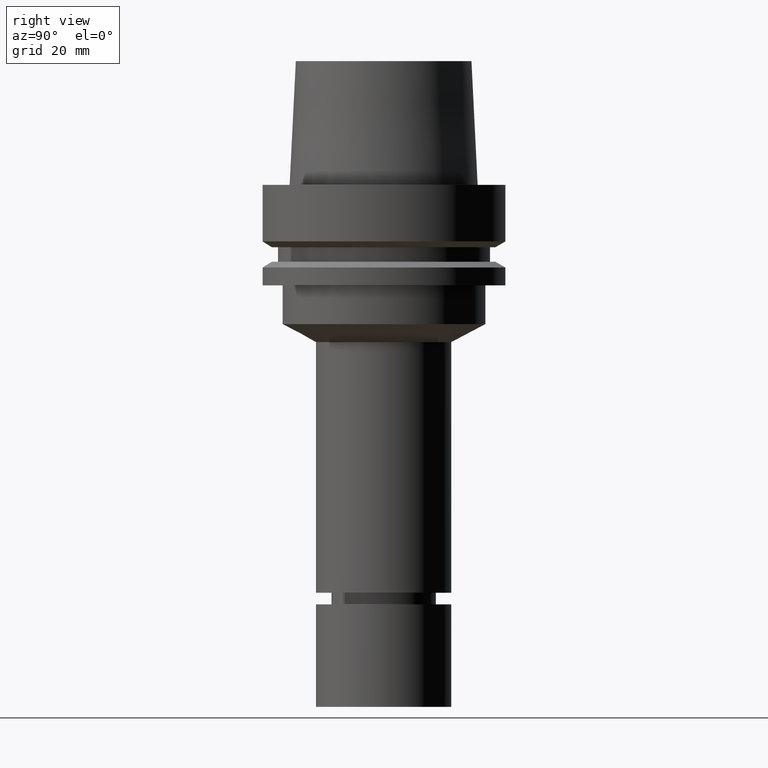
[diagram: clean part render]
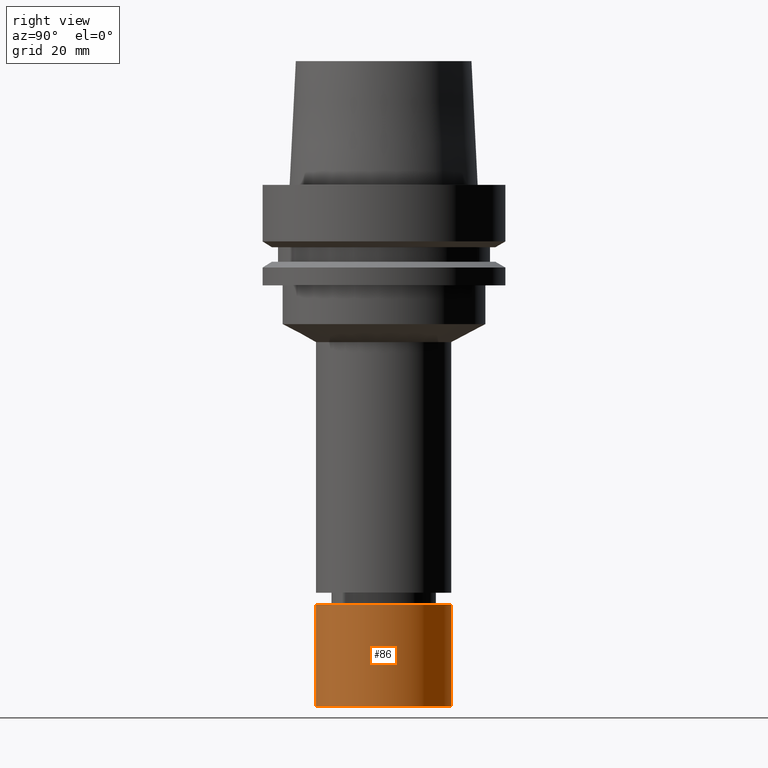
[diagram: same view with one face highlighted and labeled with its STEP entity id]
A machine part, right view. The second image highlights one B-rep face of the part: STEP entity #86.
In plain terms, the highlighted cylindrical surface (bore or boss wall) has radius 17.5 mm, axis along (0, 0, -1).
Its self-contained STEP definition (entity closure, byte-faithful):
#86=ADVANCED_FACE('Unnamed[1]',(#226,#227),#228,.T.);
#88=EDGE_CURVE('Unnamed[1]',#230,#230,#231,.T.);
#190=EDGE_CURVE('Unnamed[1]',#386,#386,#387,.T.);
#226=FACE_BOUND('',#420,.T.);
#227=FACE_BOUND('',#421,.T.);
#228=CYLINDRICAL_SURFACE('',#422,17.5);
#230=VERTEX_POINT('',#425);
#231=CIRCLE('',#426,17.5);
#386=VERTEX_POINT('',#619);
#387=CIRCLE('',#620,17.5);
#420=EDGE_LOOP('',(#643));
#421=EDGE_LOOP('',(#644));
#422=AXIS2_PLACEMENT_3D('',#645,#646,#647);
#425=CARTESIAN_POINT('',(6.64370981970575E-015,17.5,-108.500015258789));
#426=AXIS2_PLACEMENT_3D('',#648,#649,#650);
#619=CARTESIAN_POINT('',(8.26636589424462E-015,17.5,-135.0));
#620=AXIS2_PLACEMENT_3D('',#820,#821,#822);
#643=ORIENTED_EDGE('',*,*,#190,.F.);
#644=ORIENTED_EDGE('',*,*,#88,.T.);
#645=CARTESIAN_POINT('',(7.45503785697519E-015,1.49100757139504E-014,-121.750007629394));
#646=DIRECTION('',(6.12323399573677E-017,1.22464679914735E-016,-1.0));
#647=DIRECTION('',(-1.23259516440783E-032,1.0,1.22464679914735E-016));
#648=CARTESIAN_POINT('',(6.64370981970575E-015,1.32874196394115E-014,-108.500015258789));
#649=DIRECTION('',(6.12323399573677E-017,1.22464679914735E-016,-1.0));
#650=DIRECTION('',(-1.23259516440783E-032,1.0,1.22464679914735E-016));
#820=CARTESIAN_POINT('',(8.26636589424462E-015,1.65327317884892E-014,-135.0));
#821=DIRECTION('',(6.12323399573677E-017,1.22464679914735E-016,-1.0));
#822=DIRECTION('',(-1.23259516440783E-032,1.0,1.22464679914735E-016));